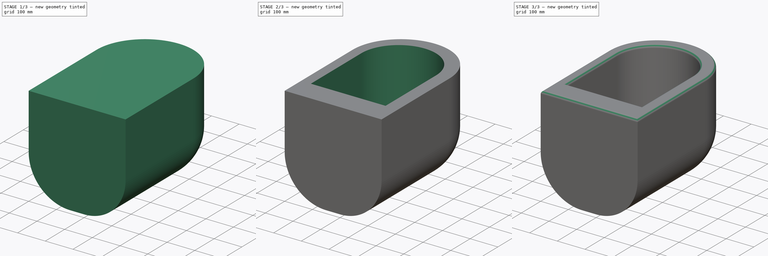
[diagram: build sequence overview — one tinted view per stage of 3, left to right]
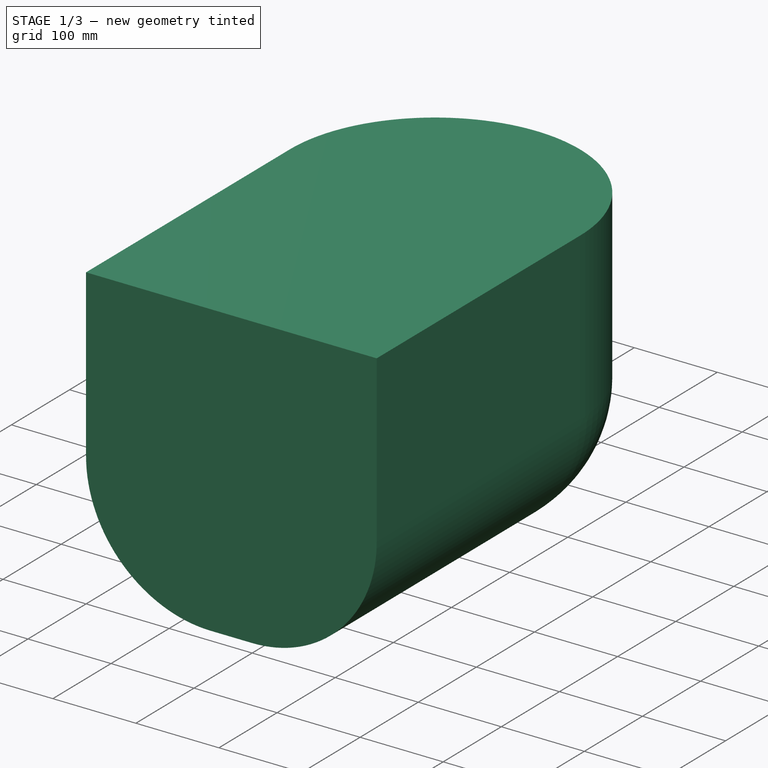
[diagram: stage 1 of 3 — iso view after this stage's code; geometry added in this stage tinted green]
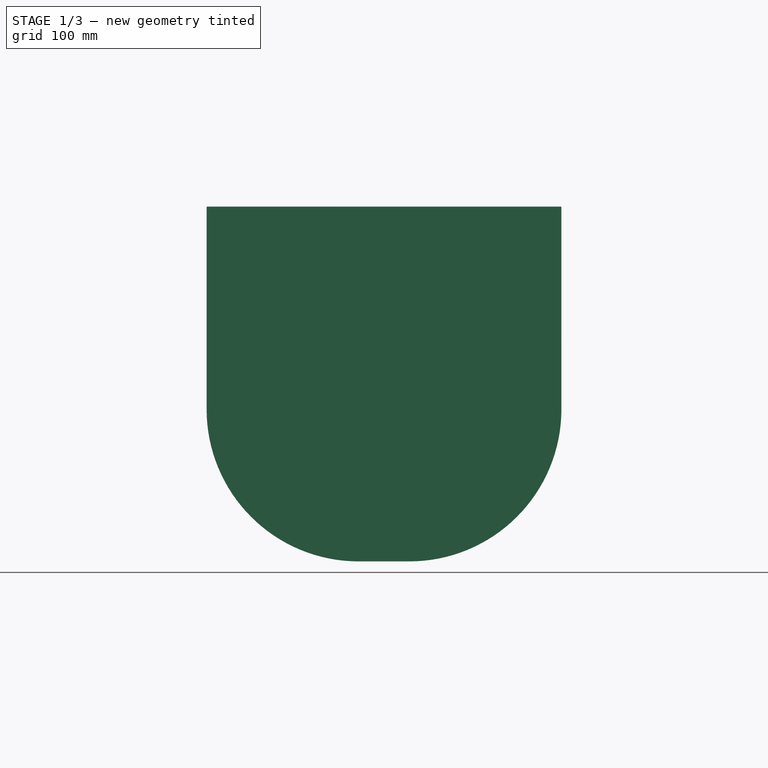
[diagram: stage 1 of 3 — front view after this stage's code; geometry added in this stage tinted green]
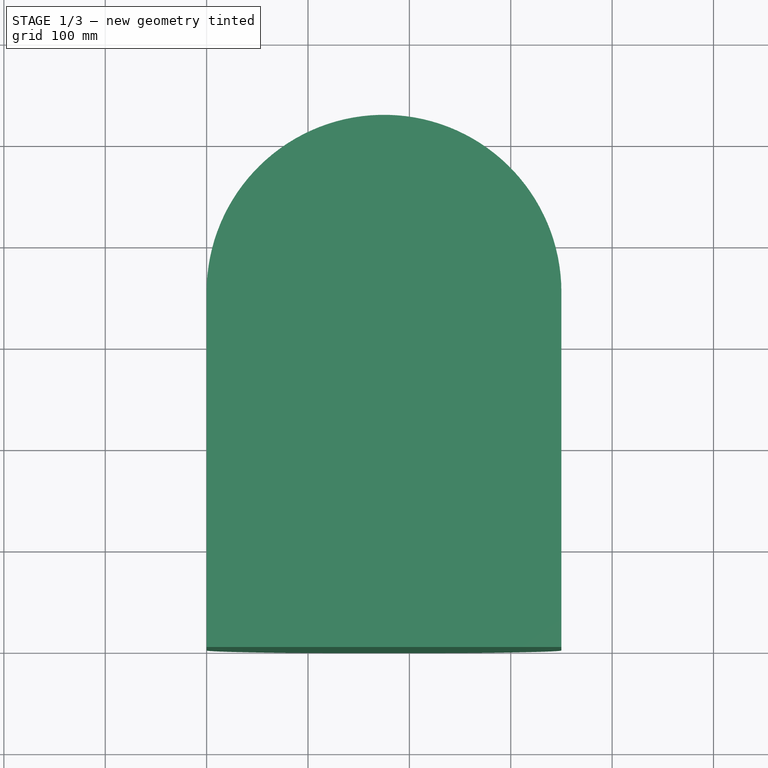
[diagram: stage 1 of 3 — top view after this stage's code; geometry added in this stage tinted green]
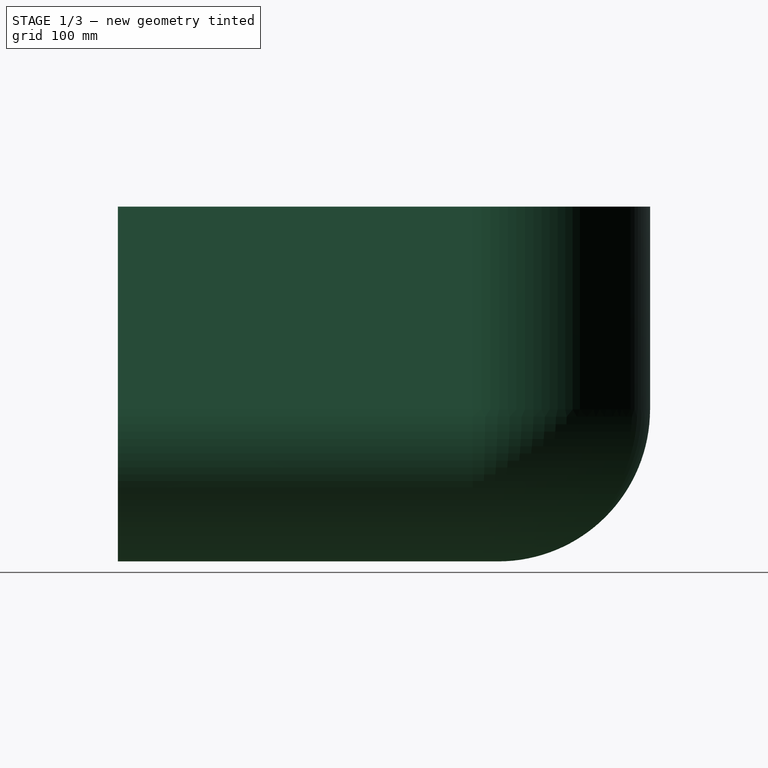
[diagram: stage 1 of 3 — right view after this stage's code; geometry added in this stage tinted green]
FCSTD DOCUMENT  (FreeCAD 0.18R16131 (Git))
Label: WallHungBidet
License: All rights reserved
LicenseURL: http://en.wikipedia.org/wiki/All_rights_reserved
objects: Sketcher::SketchObject×3, PartDesign::Fillet×2, PartDesign::Pocket×2, PartDesign::Pad×1, PartDesign::Body×1
note: 12 computed .brp shape members not serialized (recipe doc carries the construction recipe); baked Part::Feature solids carry a one-line shape summary decoded from their .brp

FEATURE [Sketcher::SketchObject] Sketch
  MapMode = 5
  Support = -> [XY_Plane]
  sketch-geometry (5):
    g0: LineSegment StartX=0 StartY=350 StartZ=0 EndX=0 EndY=0 EndZ=0
    g1: LineSegment StartX=0 StartY=0 StartZ=0 EndX=350 EndY=0 EndZ=0
    g2: LineSegment StartX=350 StartY=0 StartZ=0 EndX=350 EndY=350 EndZ=0
    g3: ArcOfCircle CenterX=175 CenterY=350 CenterZ=0 NormalX=0 NormalY=0 NormalZ=1 AngleXU=0 Radius=175 StartAngle=-6.2e-15 EndAngle=3.14159
    g4: LineSegment [constr] StartX=0 StartY=350 StartZ=0 EndX=175 EndY=350 EndZ=0
  constraints (14):
    c: Vertical(g0)
    c: Coincident(g0,g1)
    c: Horizontal(g1)
    c: Coincident(g1,g2)
    c: Vertical(g2)
    c: DistanceY(g0,g0) = 350
    c: DistanceX(g1,g1) = 350
    c: Equal(g2,g0)
    c: Coincident(g3,g0)
    c: Coincident(g3,g2)
    c: Coincident(g0,g-1)
    c: Coincident(g4,g0)
    c: Horizontal(g4)
    c: Coincident(g3,g4)
FEATURE [PartDesign::Pad] Pad
  Length = 350
  Length2 = 100
  Profile = -> Sketch
  Type = 0
FEATURE [PartDesign::Fillet] Fillet
  Base = -> Pad [Edge9,Edge11,Edge3]
  BaseFeature = -> Pad
  Radius = 150
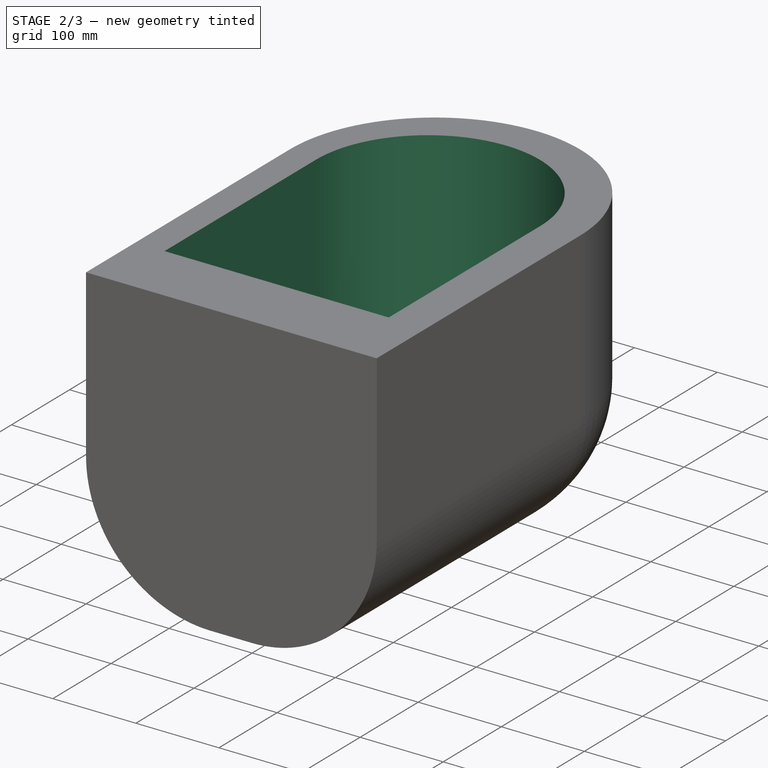
[diagram: stage 2 of 3 — iso view after this stage's code; geometry added in this stage tinted green]
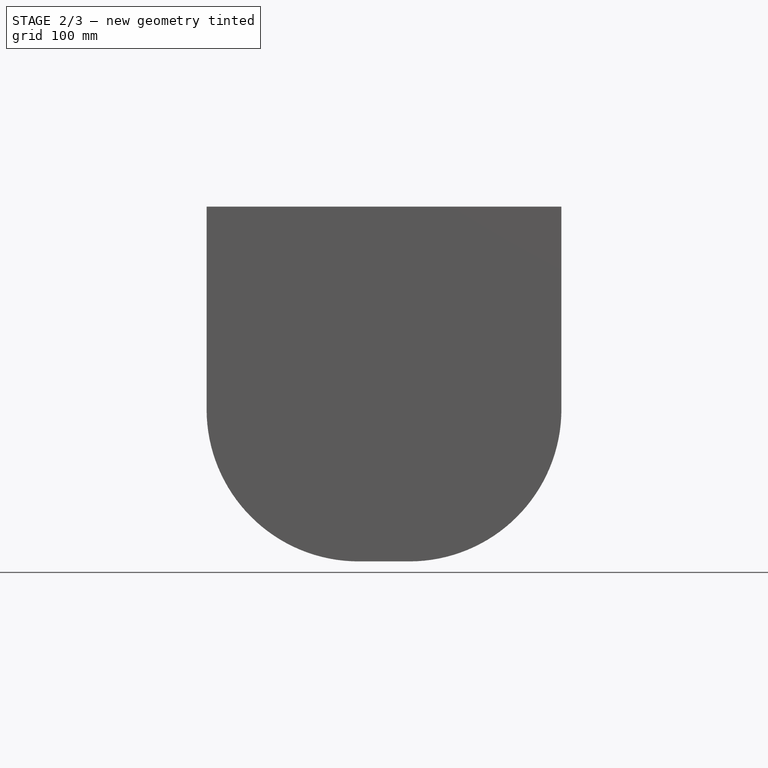
[diagram: stage 2 of 3 — front view after this stage's code; geometry added in this stage tinted green]
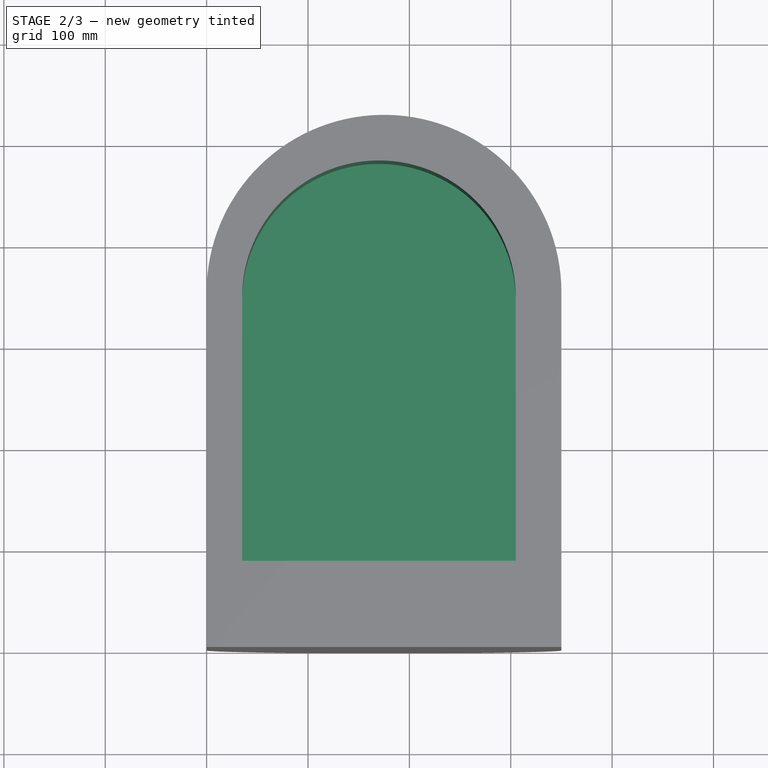
[diagram: stage 2 of 3 — top view after this stage's code; geometry added in this stage tinted green]
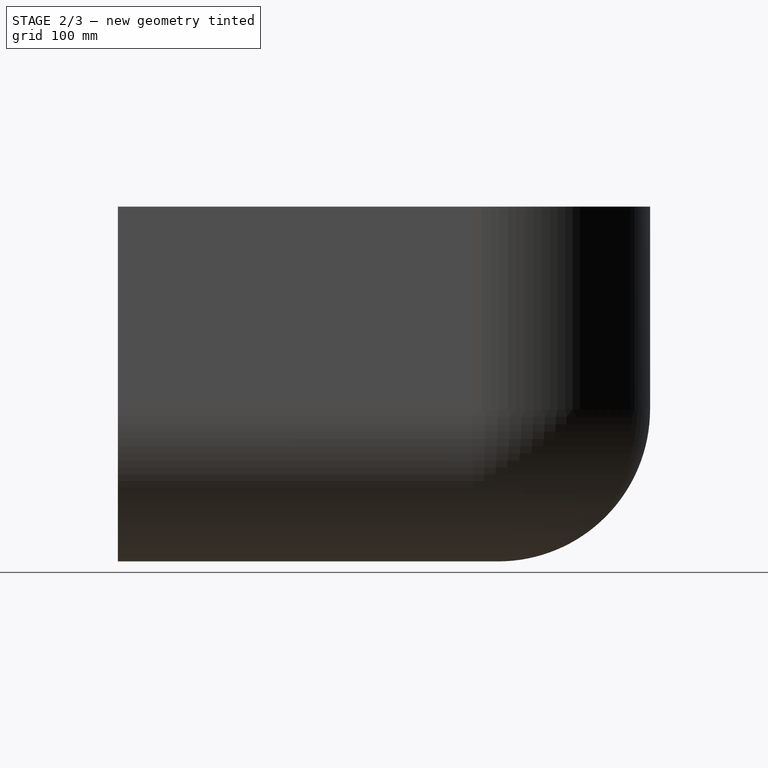
[diagram: stage 2 of 3 — right view after this stage's code; geometry added in this stage tinted green]
FEATURE [Sketcher::SketchObject] Sketch001
  MapMode = 5
  Placement = pos=(0,0,350) rot=(0,0,1;0rad)
  Support = -> [Fillet]
  sketch-geometry (4):
    g0: LineSegment StartX=35 StartY=85 StartZ=0 EndX=305 EndY=85 EndZ=0
    g1: LineSegment StartX=35 StartY=85 StartZ=0 EndX=35 EndY=345 EndZ=0
    g2: LineSegment StartX=305 StartY=85 StartZ=0 EndX=305 EndY=345 EndZ=0
    g3: ArcOfCircle CenterX=170 CenterY=345 CenterZ=0 NormalX=0 NormalY=0 NormalZ=1 AngleXU=0 Radius=135 StartAngle=0 EndAngle=3.14159
  constraints (13):
    c: Horizontal(g0)
    c: DistanceX(g0) = 35
    c: DistanceY(g0) = 85
    c: DistanceY(g1,g1) = 260
    c: Equal(g2,g1)
    c: Coincident(g3,g2)
    c: DistanceX(g3) = 170
    c: Coincident(g1,g3)
    c: Coincident(g0,g2)
    c: Coincident(g0,g1)
    c: DistanceX(g0,g0) = 270
    c: Radius(g3) = 135
    c: Horizontal(g3,g1)
FEATURE [PartDesign::Pocket] Pocket
  BaseFeature = -> Fillet
  Length = 200
  Length2 = 100
  Profile = -> Sketch001
  Type = 0
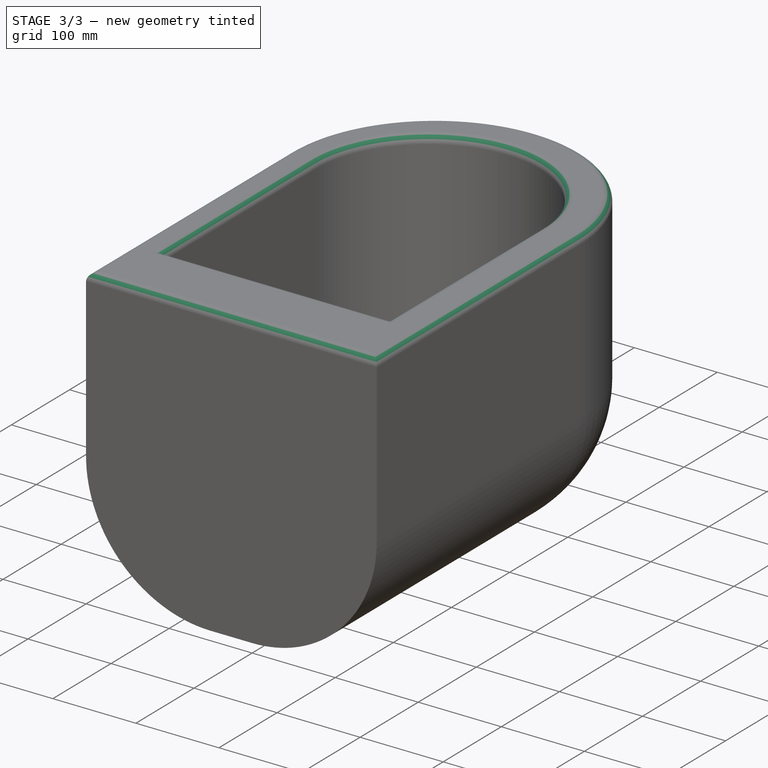
[diagram: stage 3 of 3 — iso view after this stage's code; geometry added in this stage tinted green]
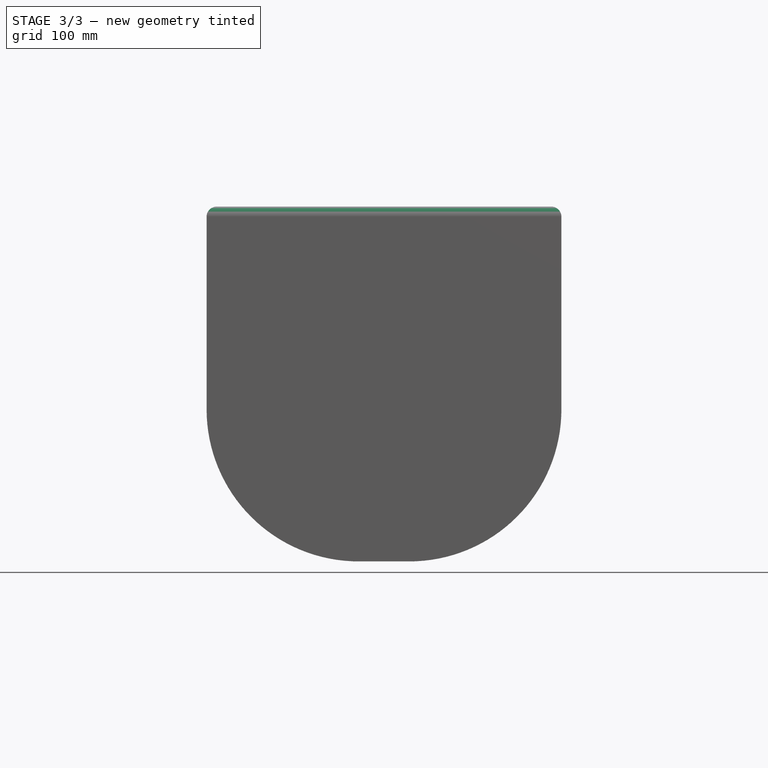
[diagram: stage 3 of 3 — front view after this stage's code; geometry added in this stage tinted green]
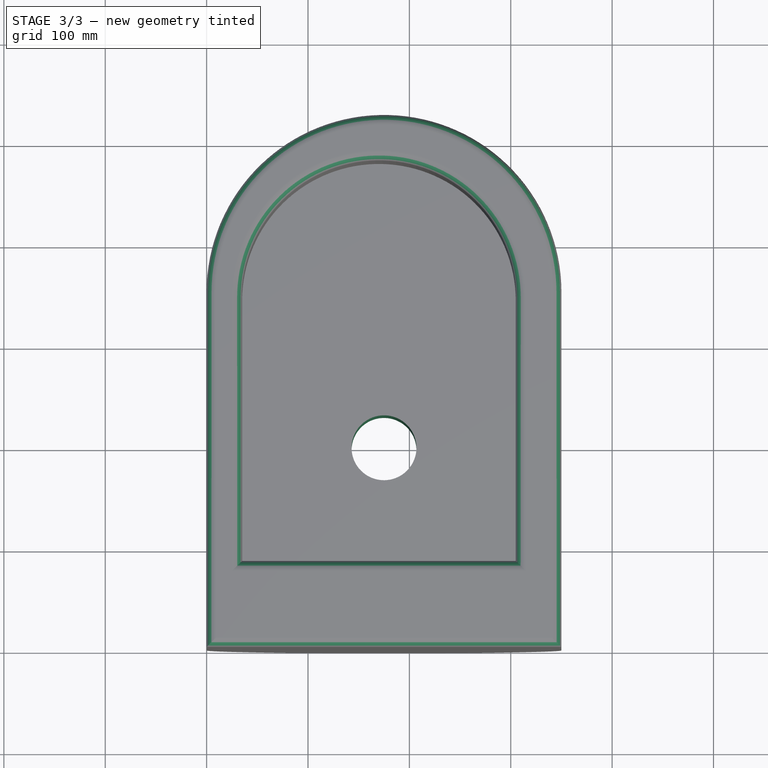
[diagram: stage 3 of 3 — top view after this stage's code; geometry added in this stage tinted green]
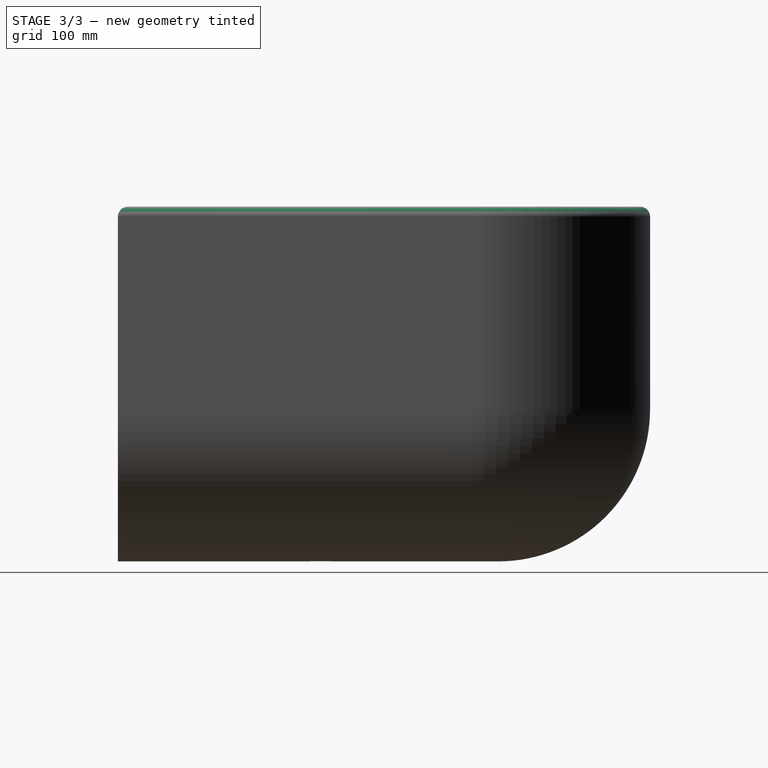
[diagram: stage 3 of 3 — right view after this stage's code; geometry added in this stage tinted green]
FEATURE [Sketcher::SketchObject] Sketch002
  MapMode = 5
  Placement = pos=(0,0,150) rot=(0,0,1;0rad)
  sketch-geometry (1):
    g0: Circle CenterX=175 CenterY=200 CenterZ=0 NormalX=0 NormalY=0 NormalZ=1 AngleXU=0 Radius=32
  constraints (3):
    c: Radius(g0) = 32
    c: DistanceX(g0) = 175
    c: DistanceY(g0) = 200
FEATURE [PartDesign::Pocket] Pocket001
  BaseFeature = -> Pocket
  Length = 150
  Length2 = 100
  Profile = -> Sketch002
  Type = 0
FEATURE [PartDesign::Fillet] Fillet001
  Base = -> Pocket001 [Face4]
  BaseFeature = -> Pocket001
  Radius = 10
FEATURE [PartDesign::Body] Body  label="Bidet"
  Group = -> [Sketch,Pad,Fillet,Sketch001,Pocket,Sketch002,Pocket001,Fillet001]
  Origin = -> Origin
  Tip = -> Fillet001
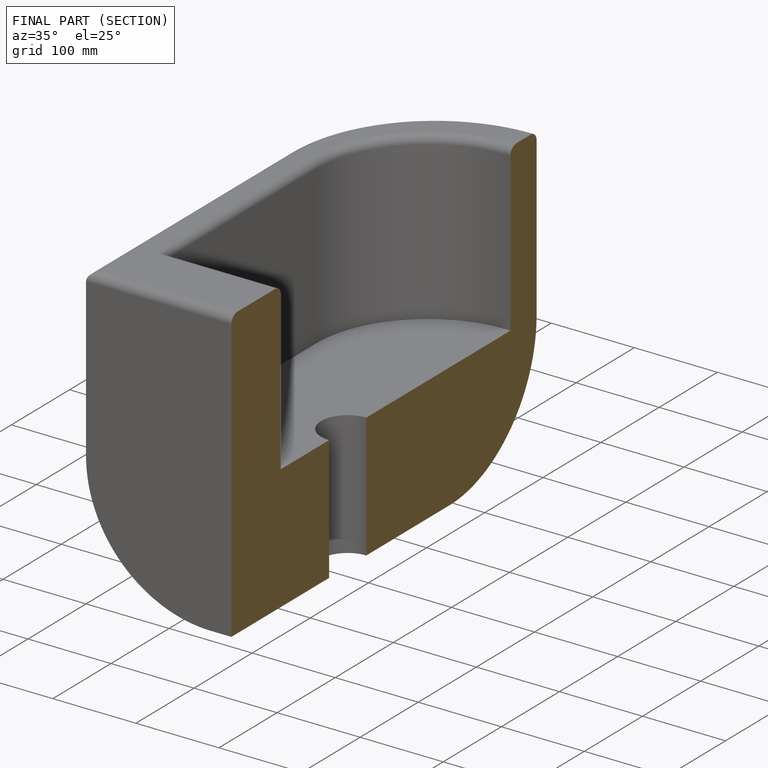
[diagram: finished part — half-section view (interior)]
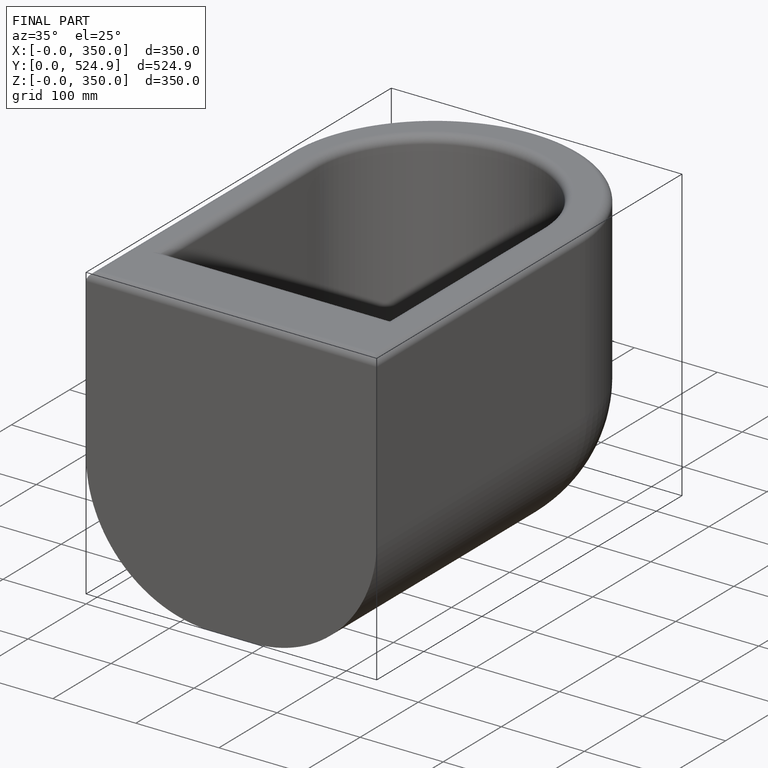
[diagram: finished part — iso view with bounding-box wireframe]
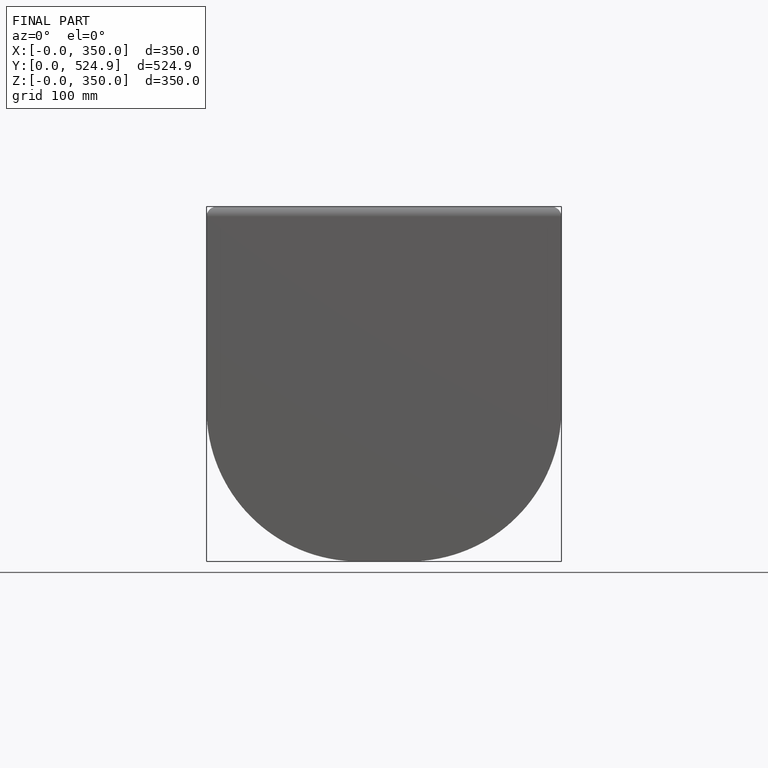
[diagram: finished part — front view with bounding-box wireframe]
